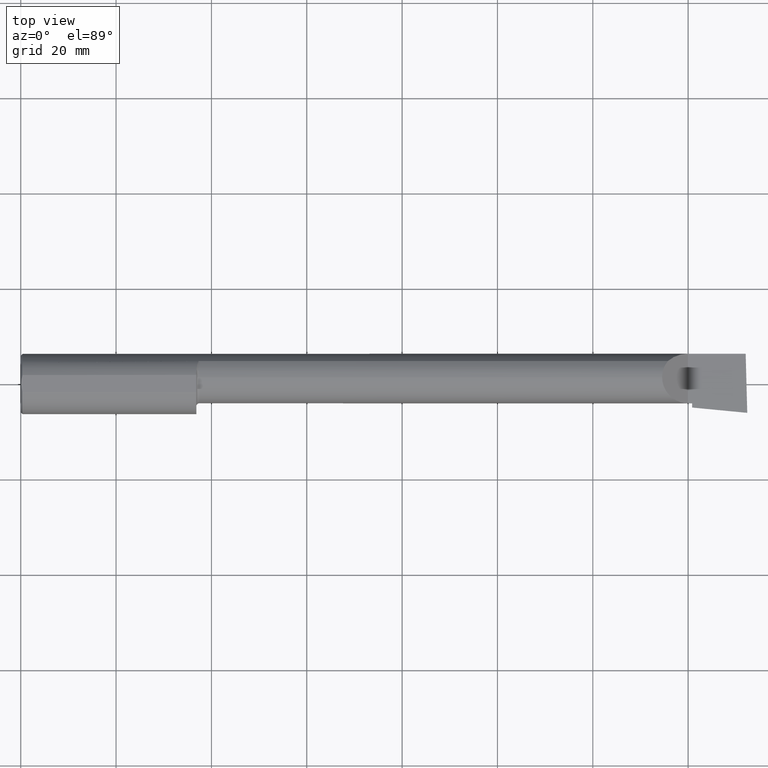
[diagram: clean part render]
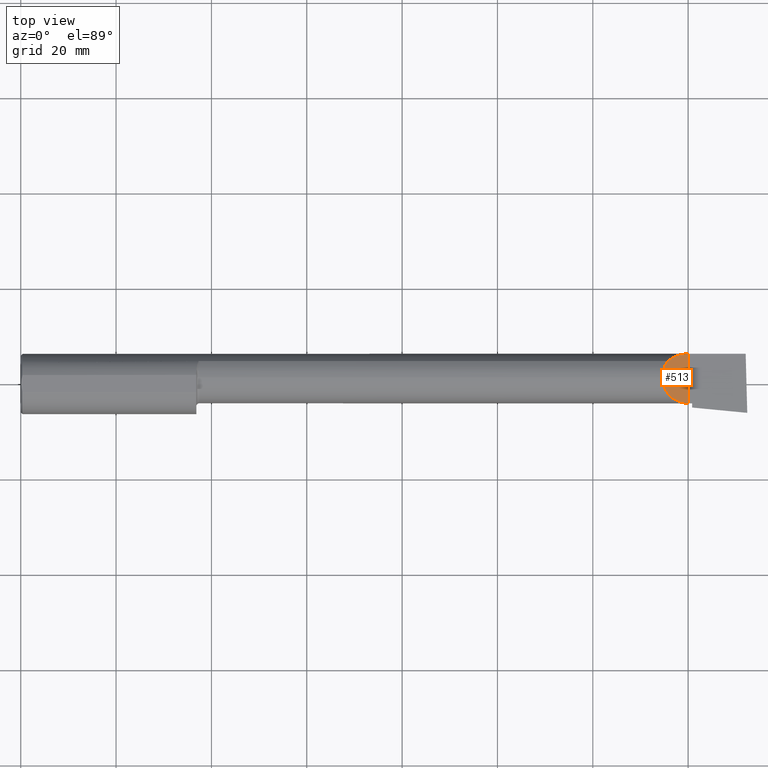
[diagram: same view with one face highlighted and labeled with its STEP entity id]
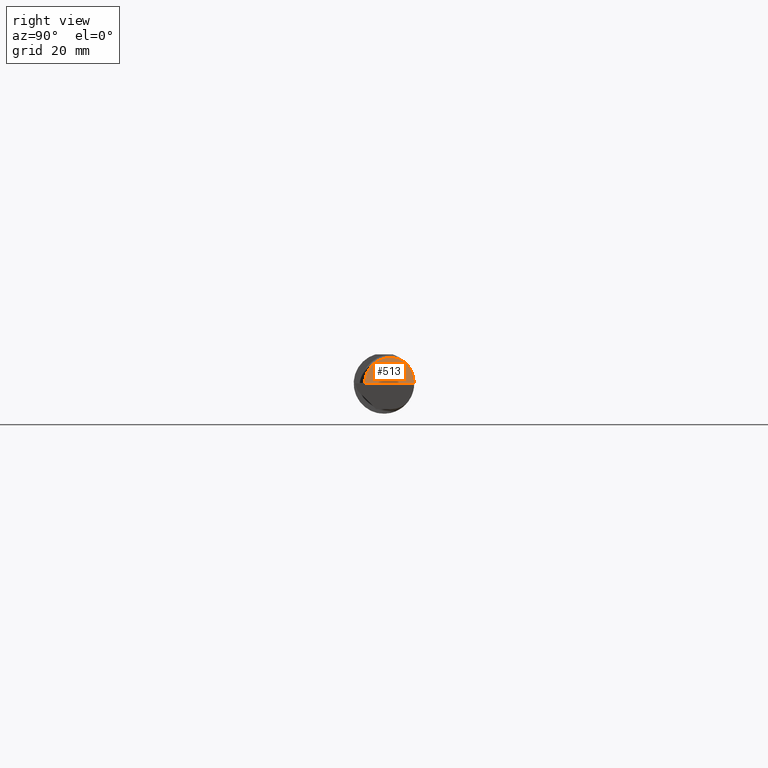
[diagram: same view with one face highlighted and labeled with its STEP entity id]
A machine part, top view. The second image highlights one B-rep face of the part: STEP entity #513.
A second angle (right view) of the same face is appended — the face is thin or edge-on in the first view.
In plain terms, the highlighted planar face has unit normal (-0.7071, 0, -0.7071).
Its self-contained STEP definition (entity closure, byte-faithful):
#1 = CARTESIAN_POINT ( 'NONE',  ( 5.344079160038587517, 0.1868028301886762721, 0.1659208399614119367 ) ) ;
#23 = CARTESIAN_POINT ( 'NONE',  ( 5.510000000000000675, -0.1601500000000002644, -1.849216666712503932E-16 ) ) ;
#45 =( BOUNDED_CURVE ( )  B_SPLINE_CURVE ( 3, ( #640, #288, #528, #759 ),
 .UNSPECIFIED., .F., .T. ) 
 B_SPLINE_CURVE_WITH_KNOTS ( ( 4, 4 ),
 ( 0.8445312661599968518, 1.570796326794897002 ),
 .UNSPECIFIED. ) 
 CURVE ( )  GEOMETRIC_REPRESENTATION_ITEM ( )  RATIONAL_B_SPLINE_CURVE ( ( 1.000000000000000000, 0.9565258159410975347, 0.9565258159410975347, 1.000000000000000000 ) ) 
 REPRESENTATION_ITEM ( '' )  );
#52 = VECTOR ( 'NONE', #523, 39.37007874015748143 ) ;
#73 = AXIS2_PLACEMENT_3D ( 'NONE', #135, #550, #663 ) ;
#95 = LINE ( 'NONE', #209, #52 ) ;
#108 = CARTESIAN_POINT ( 'NONE',  ( 5.510000000000000675, -0.1601500000000002644, -1.849216666712503932E-16 ) ) ;
#123 = CARTESIAN_POINT ( 'NONE',  ( 5.385139620819824557, -0.1601500000000002644, 0.1248603791801748963 ) ) ;
#135 = CARTESIAN_POINT ( 'NONE',  ( 5.510000000000000675, -0.2500000000000000555, -1.849216666712503932E-16 ) ) ;
#153 = CARTESIAN_POINT ( 'NONE',  ( 5.296849999999997394, -0.07186037918017493253, 0.2131500000000002004 ) ) ;
#172 = VERTEX_POINT ( 'NONE', #543 ) ;
#173 = EDGE_LOOP ( 'NONE', ( #712, #583, #264, #460 ) ) ;
#175 = VERTEX_POINT ( 'NONE', #23 ) ;
#209 = CARTESIAN_POINT ( 'NONE',  ( 5.510000000000000675, -0.2500000000000000555, -1.849216666712503932E-16 ) ) ;
#264 = ORIENTED_EDGE ( 'NONE', *, *, #377, .T. ) ;
#271 = VERTEX_POINT ( 'NONE', #374 ) ;
#274 =( BOUNDED_CURVE ( )  B_SPLINE_CURVE ( 3, ( #646, #153, #123, #108 ),
 .UNSPECIFIED., .F., .T. ) 
 B_SPLINE_CURVE_WITH_KNOTS ( ( 4, 4 ),
 ( 0.000000000000000000, 1.570796326794896780 ),
 .UNSPECIFIED. ) 
 CURVE ( )  GEOMETRIC_REPRESENTATION_ITEM ( )  RATIONAL_B_SPLINE_CURVE ( ( 1.000000000000000000, 0.8047378541243649375, 0.8047378541243649375, 1.000000000000000000 ) ) 
 REPRESENTATION_ITEM ( '' )  );
#280 = CARTESIAN_POINT ( 'NONE',  ( 5.344079160038587517, 0.1868028301886762721, 0.1659208399614119367 ) ) ;
#288 = CARTESIAN_POINT ( 'NONE',  ( 5.390325100969864280, 0.2278791102234763999, 0.1196748990301354371 ) ) ;
#337 = CARTESIAN_POINT ( 'NONE',  ( 5.296849999999999170, 0.05299999999999998462, 0.2131500000000002282 ) ) ;
#374 = CARTESIAN_POINT ( 'NONE',  ( 5.296849999999999170, 0.05299999999999998462, 0.2131500000000002282 ) ) ;
#377 = EDGE_CURVE ( 'NONE', #271, #175, #274, .T. ) ;
#391 = CARTESIAN_POINT ( 'NONE',  ( 5.296849999999998282, 0.1021668565906554971, 0.2131500000000002837 ) ) ;
#423 = FACE_OUTER_BOUND ( 'NONE', #173, .T. ) ;
#433 = PLANE ( 'NONE',  #73 ) ;
#434 =( BOUNDED_CURVE ( )  B_SPLINE_CURVE ( 3, ( #280, #691, #391, #337 ),
 .UNSPECIFIED., .F., .F. ) 
 B_SPLINE_CURVE_WITH_KNOTS ( ( 4, 4 ),
 ( 5.604538515477368144, 6.283185307179586232 ),
 .UNSPECIFIED. ) 
 CURVE ( )  GEOMETRIC_REPRESENTATION_ITEM ( )  RATIONAL_B_SPLINE_CURVE ( ( 1.000000000000000000, 0.9619867256453047411, 0.9619867256453047411, 1.000000000000000000 ) ) 
 REPRESENTATION_ITEM ( '' )  );
#439 = EDGE_CURVE ( 'NONE', #175, #172, #95, .T. ) ;
#460 = ORIENTED_EDGE ( 'NONE', *, *, #439, .T. ) ;
#481 = EDGE_CURVE ( 'NONE', #750, #172, #45, .T. ) ;
#513 = ADVANCED_FACE ( 'NONE', ( #423 ), #433, .F. ) ;
#523 = DIRECTION ( 'NONE',  ( -0.000000000000000000, 1.000000000000000000, -0.000000000000000000 ) ) ;
#528 = CARTESIAN_POINT ( 'NONE',  ( 5.448145753305722927, 0.2498500000000000443, 0.06185424669427648514 ) ) ;
#543 = CARTESIAN_POINT ( 'NONE',  ( 5.510000000000000675, 0.2498499999999998222, -1.849216666712503932E-16 ) ) ;
#550 = DIRECTION ( 'NONE',  ( -0.7071067811865430208, 0.000000000000000000, -0.7071067811865520136 ) ) ;
#583 = ORIENTED_EDGE ( 'NONE', *, *, #610, .T. ) ;
#610 = EDGE_CURVE ( 'NONE', #750, #271, #434, .T. ) ;
#640 = CARTESIAN_POINT ( 'NONE',  ( 5.344079160038587517, 0.1868028301886762721, 0.1659208399614119367 ) ) ;
#646 = CARTESIAN_POINT ( 'NONE',  ( 5.296849999999999170, 0.05299999999999998462, 0.2131500000000002282 ) ) ;
#663 = DIRECTION ( 'NONE',  ( -0.7071067811865520136, 0.000000000000000000, 0.7071067811865430208 ) ) ;
#691 = CARTESIAN_POINT ( 'NONE',  ( 5.313215146136122335, 0.1485302233682031792, 0.1967848538638768963 ) ) ;
#712 = ORIENTED_EDGE ( 'NONE', *, *, #481, .F. ) ;
#750 = VERTEX_POINT ( 'NONE', #1 ) ;
#759 = CARTESIAN_POINT ( 'NONE',  ( 5.510000000000000675, 0.2498499999999998222, -1.849216666712503932E-16 ) ) ;